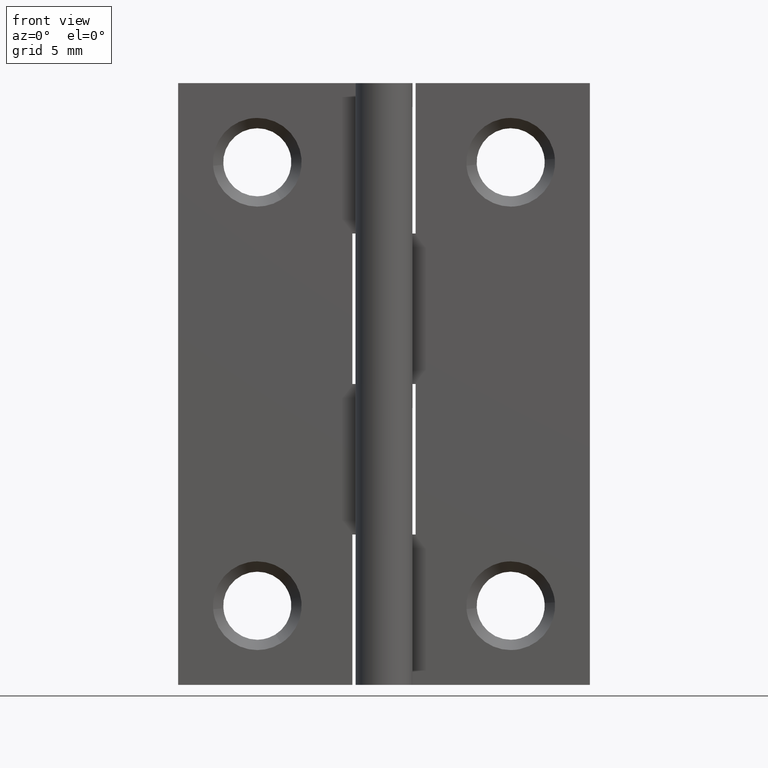
[diagram: clean part render]
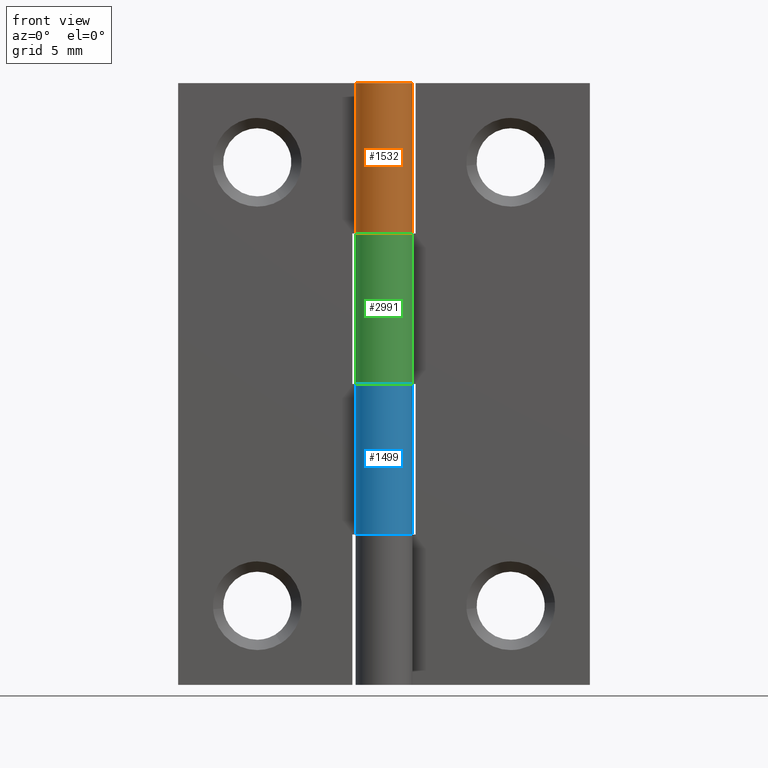
[diagram: same view with three faces highlighted in distinct colors, each labeled with its STEP entity id]
A machine part, front view with three faces highlighted in distinct colors.
Their STEP definitions:

[orange] entity #1532 — the highlighted face is a freeform B-spline surface patch.
#1094=CARTESIAN_POINT('',(-1.528888485142070,0.950000000000000,28.500000000000000));
#1095=VERTEX_POINT('',#1094);
#1096=CARTESIAN_POINT('',(0.001897366339662,1.799998999999940,28.500000000000000));
#1097=VERTEX_POINT('',#1096);
#1098=CARTESIAN_POINT('',(-1.528888485142066,0.949999999999999,28.500000000000000));
#1099=CARTESIAN_POINT('',(-2.263777831148613,-0.232698798908417,28.499999999999996));
#1100=CARTESIAN_POINT('',(-1.303653888328168,-1.241163381447765,28.500000000000000));
#1101=CARTESIAN_POINT('',(-0.343529945507721,-2.249627963987113,28.499999999999996));
#1102=CARTESIAN_POINT('',(0.873813506547938,-1.573674030977952,28.500000000000000));
#1103=CARTESIAN_POINT('',(2.091156958603596,-0.897720097968792,28.499999999999996));
#1104=CARTESIAN_POINT('',(1.742737735062384,0.450405580326922,28.500000000000000));
#1105=CARTESIAN_POINT('',(1.394318511521173,1.798531258622636,28.499999999999996));
#1106=CARTESIAN_POINT('',(0.001897366339662,1.799998999999992,28.500000000000000));
#1114=(BOUNDED_CURVE()B_SPLINE_CURVE(2,(#1098,#1099,#1100,#1101,#1102,#1103,#1104,#1105,#1106),.UNSPECIFIED.,.F.,.U.)B_SPLINE_CURVE_WITH_KNOTS((3,2,2,2,3),(0.0,0.250000000000000,0.500000000000000,0.750000000000000,1.0),.UNSPECIFIED.)CURVE()GEOMETRIC_REPRESENTATION_ITEM()RATIONAL_B_SPLINE_CURVE((1.0,0.790963255348670,1.0,0.790963255348670,1.0,0.790963255348670,1.0,0.790963255348670,1.0))REPRESENTATION_ITEM(''));
#1115=EDGE_CURVE('',#1095,#1097,#1114,.T.);
#1293=CARTESIAN_POINT('',(-1.528888485142070,0.950000000000000,37.999992999999897));
#1294=VERTEX_POINT('',#1293);
#1300=CARTESIAN_POINT('',(0.001897366339662,1.799999000000000,37.999992999999897));
#1301=VERTEX_POINT('',#1300);
#1302=CARTESIAN_POINT('',(0.001897366339661,1.799998999999992,37.999992999999897));
#1303=CARTESIAN_POINT('',(1.394318511521171,1.798531258622637,37.999992999999897));
#1304=CARTESIAN_POINT('',(1.742737735062384,0.450405580326923,37.999992999999897));
#1305=CARTESIAN_POINT('',(2.091156958603596,-0.897720097968790,37.999992999999897));
#1306=CARTESIAN_POINT('',(0.873813506547939,-1.573674030977952,37.999992999999897));
#1307=CARTESIAN_POINT('',(-0.343529945507719,-2.249627963987113,37.999992999999897));
#1308=CARTESIAN_POINT('',(-1.303653888328166,-1.241163381447766,37.999992999999897));
#1309=CARTESIAN_POINT('',(-2.263777831148612,-0.232698798908420,37.999992999999897));
#1310=CARTESIAN_POINT('',(-1.528888485142067,0.949999999999997,37.999992999999897));
#1318=(BOUNDED_CURVE()B_SPLINE_CURVE(2,(#1302,#1303,#1304,#1305,#1306,#1307,#1308,#1309,#1310),.UNSPECIFIED.,.F.,.U.)B_SPLINE_CURVE_WITH_KNOTS((3,2,2,2,3),(0.0,0.250000000000000,0.500000000000000,0.750000000000000,1.0),.UNSPECIFIED.)CURVE()GEOMETRIC_REPRESENTATION_ITEM()RATIONAL_B_SPLINE_CURVE((1.0,0.790963255348670,1.0,0.790963255348670,1.0,0.790963255348670,1.0,0.790963255348670,1.0))REPRESENTATION_ITEM(''));
#1319=EDGE_CURVE('',#1301,#1294,#1318,.T.);
#1434=CARTESIAN_POINT('',(0.001897366339662,1.799999000000000,37.999992999999897));
#1435=CARTESIAN_POINT('',(0.001897366339662,1.799998999999940,28.500000000000000));
#1436=QUASI_UNIFORM_CURVE('',1,(#1434,#1435),.UNSPECIFIED.,.F.,.U.);
#1437=EDGE_CURVE('',#1301,#1097,#1436,.T.);
#1500=CARTESIAN_POINT('',(-1.503496472350569,0.989696093570846,38.237492824999897));
#1501=CARTESIAN_POINT('',(-1.503496472350569,0.989696093570846,28.256562679375001));
#1502=CARTESIAN_POINT('',(-2.725669364135054,-0.866967424995352,38.237492824999912));
#1503=CARTESIAN_POINT('',(-2.725669364135054,-0.866967424995352,28.256562679375001));
#1504=CARTESIAN_POINT('',(-0.655474365677000,-1.676410855351495,38.237492824999897));
#1505=CARTESIAN_POINT('',(-0.655474365677000,-1.676410855351495,28.256562679375001));
#1506=CARTESIAN_POINT('',(1.414720632781055,-2.485854285707639,38.237492824999912));
#1507=CARTESIAN_POINT('',(1.414720632781055,-2.485854285707639,28.256562679375001));
#1508=CARTESIAN_POINT('',(1.776058039661775,-0.292605262688095,38.237492824999897));
#1509=CARTESIAN_POINT('',(1.776058039661775,-0.292605262688095,28.256562679375001));
#1510=CARTESIAN_POINT('',(2.137395446542497,1.900643760331447,38.237492824999912));
#1511=CARTESIAN_POINT('',(2.137395446542497,1.900643760331447,28.256562679375001));
#1512=CARTESIAN_POINT('',(-0.083052094356109,1.798082965166808,38.237492824999897));
#1513=CARTESIAN_POINT('',(-0.083052094356109,1.798082965166808,28.256562679375001));
#1521=(BOUNDED_SURFACE()B_SPLINE_SURFACE(1,2,((#1500,#1502,#1504,#1506,#1508,#1510,#1512),(#1501,#1503,#1505,#1507,#1509,#1511,#1513)),.UNSPECIFIED.,.F.,.F.,.U.)B_SPLINE_SURFACE_WITH_KNOTS((2,2),(3,2,2,3),(0.0,9.980930145624910),(0.0,3.434223835426751,6.868447670853502,10.302671506280250),.UNSPECIFIED.)GEOMETRIC_REPRESENTATION_ITEM()RATIONAL_B_SPLINE_SURFACE(((1.0,0.629320391049838,1.0,0.629320391049838,1.0,0.629320391049838,1.0),(1.0,0.629320391049838,1.0,0.629320391049838,1.0,0.629320391049838,1.0)))REPRESENTATION_ITEM('')SURFACE());
#1522=CARTESIAN_POINT('',(-1.528888485142070,0.950000000000000,37.999992999999897));
#1523=CARTESIAN_POINT('',(-1.528888485142070,0.950000000000000,28.500000000000000));
#1524=QUASI_UNIFORM_CURVE('',1,(#1522,#1523),.UNSPECIFIED.,.F.,.U.);
#1525=EDGE_CURVE('',#1294,#1095,#1524,.T.);
#1526=ORIENTED_EDGE('',*,*,#1525,.T.);
#1527=ORIENTED_EDGE('',*,*,#1115,.T.);
#1528=ORIENTED_EDGE('',*,*,#1437,.F.);
#1529=ORIENTED_EDGE('',*,*,#1319,.T.);
#1530=EDGE_LOOP('',(#1526,#1527,#1528,#1529));
#1531=FACE_OUTER_BOUND('',#1530,.T.);
#1532=ADVANCED_FACE('',(#1531),#1521,.T.);

[blue] entity #1499 — the highlighted face is a freeform B-spline surface patch.
#1024=CARTESIAN_POINT('',(0.001897366339662,1.799998999999940,19.0));
#1025=VERTEX_POINT('',#1024);
#1060=CARTESIAN_POINT('',(-1.528888485142070,0.950000000000000,19.0));
#1061=VERTEX_POINT('',#1060);
#1067=CARTESIAN_POINT('',(0.001897366339662,1.799998999999940,19.0));
#1068=CARTESIAN_POINT('',(1.394318511521174,1.798531258622636,18.999999999999996));
#1069=CARTESIAN_POINT('',(1.742737735062384,0.450405580326921,19.0));
#1070=CARTESIAN_POINT('',(2.091156958603595,-0.897720097968791,18.999999999999996));
#1071=CARTESIAN_POINT('',(0.873813506547939,-1.573674030977952,19.0));
#1072=CARTESIAN_POINT('',(-0.343529945507719,-2.249627963987113,18.999999999999996));
#1073=CARTESIAN_POINT('',(-1.303653888328166,-1.241163381447766,19.0));
#1074=CARTESIAN_POINT('',(-2.263777831148613,-0.232698798908420,18.999999999999996));
#1075=CARTESIAN_POINT('',(-1.528888485142067,0.949999999999997,19.0));
#1083=(BOUNDED_CURVE()B_SPLINE_CURVE(2,(#1067,#1068,#1069,#1070,#1071,#1072,#1073,#1074,#1075),.UNSPECIFIED.,.F.,.U.)B_SPLINE_CURVE_WITH_KNOTS((3,2,2,2,3),(0.0,0.250000000000000,0.500000000000000,0.750000000000000,1.0),.UNSPECIFIED.)CURVE()GEOMETRIC_REPRESENTATION_ITEM()RATIONAL_B_SPLINE_CURVE((1.0,0.790963255348670,1.0,0.790963255348670,1.0,0.790963255348670,1.0,0.790963255348670,1.0))REPRESENTATION_ITEM(''));
#1084=EDGE_CURVE('',#1025,#1061,#1083,.T.);
#1200=CARTESIAN_POINT('',(-1.528888485142070,0.950000000000000,9.500000000000000));
#1201=VERTEX_POINT('',#1200);
#1202=CARTESIAN_POINT('',(0.001897366339662,1.799998999999940,9.499999999999901));
#1203=VERTEX_POINT('',#1202);
#1204=CARTESIAN_POINT('',(-1.528888485142066,0.949999999999999,9.500000000000000));
#1205=CARTESIAN_POINT('',(-2.263777831148613,-0.232698798908417,9.500000000000000));
#1206=CARTESIAN_POINT('',(-1.303653888328168,-1.241163381447765,9.500000000000000));
#1207=CARTESIAN_POINT('',(-0.343529945507721,-2.249627963987113,9.500000000000000));
#1208=CARTESIAN_POINT('',(0.873813506547938,-1.573674030977952,9.500000000000000));
#1209=CARTESIAN_POINT('',(2.091156958603596,-0.897720097968792,9.500000000000000));
#1210=CARTESIAN_POINT('',(1.742737735062384,0.450405580326922,9.500000000000000));
#1211=CARTESIAN_POINT('',(1.394318511521173,1.798531258622636,9.500000000000000));
#1212=CARTESIAN_POINT('',(0.001897366339662,1.799998999999940,9.499999999999901));
#1220=(BOUNDED_CURVE()B_SPLINE_CURVE(2,(#1204,#1205,#1206,#1207,#1208,#1209,#1210,#1211,#1212),.UNSPECIFIED.,.F.,.U.)B_SPLINE_CURVE_WITH_KNOTS((3,2,2,2,3),(0.0,0.250000000000000,0.500000000000000,0.750000000000000,1.0),.UNSPECIFIED.)CURVE()GEOMETRIC_REPRESENTATION_ITEM()RATIONAL_B_SPLINE_CURVE((1.0,0.790963255348670,1.0,0.790963255348670,1.0,0.790963255348670,1.0,0.790963255348670,1.0))REPRESENTATION_ITEM(''));
#1221=EDGE_CURVE('',#1201,#1203,#1220,.T.);
#1442=CARTESIAN_POINT('',(0.001897366339662,1.799998999999940,19.0));
#1443=CARTESIAN_POINT('',(0.001897366339662,1.799998999999940,9.499999999999901));
#1444=QUASI_UNIFORM_CURVE('',1,(#1442,#1443),.UNSPECIFIED.,.F.,.U.);
#1445=EDGE_CURVE('',#1025,#1203,#1444,.T.);
#1467=CARTESIAN_POINT('',(-1.503496472350569,0.989696093570846,19.237500000000011));
#1468=CARTESIAN_POINT('',(-1.503496472350569,0.989696093570846,9.256562499999896));
#1469=CARTESIAN_POINT('',(-2.725669364135054,-0.866967424995352,19.237500000000001));
#1470=CARTESIAN_POINT('',(-2.725669364135054,-0.866967424995352,9.256562499999896));
#1471=CARTESIAN_POINT('',(-0.655474365677000,-1.676410855351495,19.237500000000011));
#1472=CARTESIAN_POINT('',(-0.655474365677000,-1.676410855351495,9.256562499999896));
#1473=CARTESIAN_POINT('',(1.414720632781055,-2.485854285707639,19.237500000000001));
#1474=CARTESIAN_POINT('',(1.414720632781055,-2.485854285707639,9.256562499999896));
#1475=CARTESIAN_POINT('',(1.776058039661775,-0.292605262688095,19.237500000000011));
#1476=CARTESIAN_POINT('',(1.776058039661775,-0.292605262688095,9.256562499999896));
#1477=CARTESIAN_POINT('',(2.137395446542497,1.900643760331447,19.237500000000001));
#1478=CARTESIAN_POINT('',(2.137395446542497,1.900643760331447,9.256562499999896));
#1479=CARTESIAN_POINT('',(-0.083052094356109,1.798082965166808,19.237500000000011));
#1480=CARTESIAN_POINT('',(-0.083052094356109,1.798082965166808,9.256562499999896));
#1488=(BOUNDED_SURFACE()B_SPLINE_SURFACE(1,2,((#1467,#1469,#1471,#1473,#1475,#1477,#1479),(#1468,#1470,#1472,#1474,#1476,#1478,#1480)),.UNSPECIFIED.,.F.,.F.,.U.)B_SPLINE_SURFACE_WITH_KNOTS((2,2),(3,2,2,3),(0.0,9.980937500000112),(0.0,3.434223835426751,6.868447670853502,10.302671506280250),.UNSPECIFIED.)GEOMETRIC_REPRESENTATION_ITEM()RATIONAL_B_SPLINE_SURFACE(((1.0,0.629320391049838,1.0,0.629320391049838,1.0,0.629320391049838,1.0),(1.0,0.629320391049838,1.0,0.629320391049838,1.0,0.629320391049838,1.0)))REPRESENTATION_ITEM('')SURFACE());
#1489=ORIENTED_EDGE('',*,*,#1084,.T.);
#1490=CARTESIAN_POINT('',(-1.528888485142070,0.950000000000000,19.0));
#1491=CARTESIAN_POINT('',(-1.528888485142070,0.950000000000000,9.500000000000000));
#1492=QUASI_UNIFORM_CURVE('',1,(#1490,#1491),.UNSPECIFIED.,.F.,.U.);
#1493=EDGE_CURVE('',#1061,#1201,#1492,.T.);
#1494=ORIENTED_EDGE('',*,*,#1493,.T.);
#1495=ORIENTED_EDGE('',*,*,#1221,.T.);
#1496=ORIENTED_EDGE('',*,*,#1445,.F.);
#1497=EDGE_LOOP('',(#1489,#1494,#1495,#1496));
#1498=FACE_OUTER_BOUND('',#1497,.T.);
#1499=ADVANCED_FACE('',(#1498),#1488,.T.);

[green] entity #2991 — the highlighted face is a freeform B-spline surface patch.
#2369=CARTESIAN_POINT('',(0.0,1.799999000000000,28.500000000000000));
#2370=VERTEX_POINT('',#2369);
#2371=CARTESIAN_POINT('',(1.528888485142070,0.950000000000000,28.500000000000000));
#2372=VERTEX_POINT('',#2371);
#2373=CARTESIAN_POINT('',(0.0,1.799999000000000,28.500000000000000));
#2374=CARTESIAN_POINT('',(-1.392801052929099,1.799998304105393,28.500000000000000));
#2375=CARTESIAN_POINT('',(-1.742381113599923,0.451781698599377,28.500000000000000));
#2376=CARTESIAN_POINT('',(-2.091961174270749,-0.896434906906638,28.500000000000000));
#2377=CARTESIAN_POINT('',(-0.874642784226796,-1.573213772255224,28.500000000000000));
#2378=CARTESIAN_POINT('',(0.342675605817156,-2.249992637603810,28.500000000000000));
#2379=CARTESIAN_POINT('',(1.303326767780346,-1.241506385276003,28.500000000000000));
#2380=CARTESIAN_POINT('',(2.263977929743537,-0.233020132948195,28.500000000000000));
#2381=CARTESIAN_POINT('',(1.528888485142070,0.950000000000000,28.500000000000000));
#2389=(BOUNDED_CURVE()B_SPLINE_CURVE(2,(#2373,#2374,#2375,#2376,#2377,#2378,#2379,#2380,#2381),.UNSPECIFIED.,.F.,.U.)B_SPLINE_CURVE_WITH_KNOTS((3,2,2,2,3),(0.0,0.250000000000000,0.500000000000000,0.750000000000000,1.0),.UNSPECIFIED.)CURVE()GEOMETRIC_REPRESENTATION_ITEM()RATIONAL_B_SPLINE_CURVE((1.0,0.790882628363956,1.0,0.790882628363956,1.0,0.790882628363956,1.0,0.790882628363956,1.0))REPRESENTATION_ITEM(''));
#2390=EDGE_CURVE('',#2370,#2372,#2389,.T.);
#2426=CARTESIAN_POINT('',(0.001897366339664,1.799999000000000,28.500000000000000));
#2427=VERTEX_POINT('',#2426);
#2433=CARTESIAN_POINT('',(0.0,1.799999000000000,28.500000000000000));
#2434=CARTESIAN_POINT('',(0.001897366339664,1.799999000000000,28.500000000000000));
#2435=QUASI_UNIFORM_CURVE('',1,(#2433,#2434),.UNSPECIFIED.,.F.,.U.);
#2436=EDGE_CURVE('',#2370,#2427,#2435,.T.);
#2559=CARTESIAN_POINT('',(0.0,1.799998999999940,19.0));
#2560=VERTEX_POINT('',#2559);
#2561=CARTESIAN_POINT('',(0.001897366339664,1.799998999999940,19.0));
#2562=VERTEX_POINT('',#2561);
#2563=CARTESIAN_POINT('',(0.0,1.799998999999940,19.0));
#2564=CARTESIAN_POINT('',(0.001897366339664,1.799998999999940,19.0));
#2565=QUASI_UNIFORM_CURVE('',1,(#2563,#2564),.UNSPECIFIED.,.F.,.U.);
#2566=EDGE_CURVE('',#2560,#2562,#2565,.T.);
#2602=CARTESIAN_POINT('',(1.528888485142070,0.950000000000000,19.0));
#2603=VERTEX_POINT('',#2602);
#2609=CARTESIAN_POINT('',(0.0,1.799998999999940,19.0));
#2610=CARTESIAN_POINT('',(-1.392801052929099,1.799998304105290,19.0));
#2611=CARTESIAN_POINT('',(-1.742381113599923,0.451781698599287,19.0));
#2612=CARTESIAN_POINT('',(-2.091961174270749,-0.896434906906716,19.0));
#2613=CARTESIAN_POINT('',(-0.874642784226796,-1.573213772255254,19.0));
#2614=CARTESIAN_POINT('',(0.342675605817156,-2.249992637603792,19.0));
#2615=CARTESIAN_POINT('',(1.303326767780346,-1.241506385275973,19.0));
#2616=CARTESIAN_POINT('',(2.263977929743537,-0.233020132948153,19.0));
#2617=CARTESIAN_POINT('',(1.528888485142070,0.950000000000000,19.0));
#2625=(BOUNDED_CURVE()B_SPLINE_CURVE(2,(#2609,#2610,#2611,#2612,#2613,#2614,#2615,#2616,#2617),.UNSPECIFIED.,.F.,.U.)B_SPLINE_CURVE_WITH_KNOTS((3,2,2,2,3),(0.0,0.250000000000000,0.500000000000000,0.750000000000000,1.0),.UNSPECIFIED.)CURVE()GEOMETRIC_REPRESENTATION_ITEM()RATIONAL_B_SPLINE_CURVE((1.0,0.790882628363956,1.0,0.790882628363956,1.0,0.790882628363956,1.0,0.790882628363956,1.0))REPRESENTATION_ITEM(''));
#2626=EDGE_CURVE('',#2560,#2603,#2625,.T.);
#2783=CARTESIAN_POINT('',(1.528888485142070,0.950000000000000,28.500000000000000));
#2784=CARTESIAN_POINT('',(1.528888485142070,0.950000000000000,19.0));
#2785=QUASI_UNIFORM_CURVE('',1,(#2783,#2784),.UNSPECIFIED.,.F.,.U.);
#2786=EDGE_CURVE('',#2372,#2603,#2785,.T.);
#2911=CARTESIAN_POINT('',(0.001897366339664,1.799999000000000,28.500000000000000));
#2912=CARTESIAN_POINT('',(0.001897366339664,1.799998999999940,19.0));
#2913=QUASI_UNIFORM_CURVE('',1,(#2911,#2912),.UNSPECIFIED.,.F.,.U.);
#2914=EDGE_CURVE('',#2427,#2562,#2913,.T.);
#2961=CARTESIAN_POINT('',(0.078514897257602,1.798286798847343,28.737500000000001));
#2962=CARTESIAN_POINT('',(0.078514897257602,1.798286798847343,18.756562499999990));
#2963=CARTESIAN_POINT('',(-2.155440145690264,1.895823382437670,28.737500000000011));
#2964=CARTESIAN_POINT('',(-2.155440145690264,1.895823382437670,18.756562499999998));
#2965=CARTESIAN_POINT('',(-1.773555674137216,-0.307408963330094,28.737500000000001));
#2966=CARTESIAN_POINT('',(-1.773555674137216,-0.307408963330094,18.756562499999990));
#2967=CARTESIAN_POINT('',(-1.391671202584169,-2.510641309097856,28.737500000000011));
#2968=CARTESIAN_POINT('',(-1.391671202584169,-2.510641309097856,18.756562499999998));
#2969=CARTESIAN_POINT('',(0.679143731821915,-1.666962444546067,28.737500000000001));
#2970=CARTESIAN_POINT('',(0.679143731821915,-1.666962444546067,18.756562499999990));
#2971=CARTESIAN_POINT('',(2.749958666227998,-0.823283579994278,28.737500000000011));
#2972=CARTESIAN_POINT('',(2.749958666227998,-0.823283579994278,18.756562499999998));
#2973=CARTESIAN_POINT('',(1.483427139519628,1.019531226464698,28.737500000000001));
#2974=CARTESIAN_POINT('',(1.483427139519628,1.019531226464698,18.756562499999990));
#2982=(BOUNDED_SURFACE()B_SPLINE_SURFACE(1,2,((#2961,#2963,#2965,#2967,#2969,#2971,#2973),(#2962,#2964,#2966,#2968,#2970,#2972,#2974)),.UNSPECIFIED.,.F.,.F.,.U.)B_SPLINE_SURFACE_WITH_KNOTS((2,2),(3,2,2,3),(0.0,9.980937500000010),(0.0,3.447087177418942,6.894174354837885,10.341261532256830),.UNSPECIFIED.)GEOMETRIC_REPRESENTATION_ITEM()RATIONAL_B_SPLINE_SURFACE(((1.0,0.627057105746662,1.0,0.627057105746662,1.0,0.627057105746662,1.0),(1.0,0.627057105746662,1.0,0.627057105746662,1.0,0.627057105746662,1.0)))REPRESENTATION_ITEM('')SURFACE());
#2983=ORIENTED_EDGE('',*,*,#2436,.T.);
#2984=ORIENTED_EDGE('',*,*,#2914,.T.);
#2985=ORIENTED_EDGE('',*,*,#2566,.F.);
#2986=ORIENTED_EDGE('',*,*,#2626,.T.);
#2987=ORIENTED_EDGE('',*,*,#2786,.F.);
#2988=ORIENTED_EDGE('',*,*,#2390,.F.);
#2989=EDGE_LOOP('',(#2983,#2984,#2985,#2986,#2987,#2988));
#2990=FACE_OUTER_BOUND('',#2989,.T.);
#2991=ADVANCED_FACE('',(#2990),#2982,.T.);